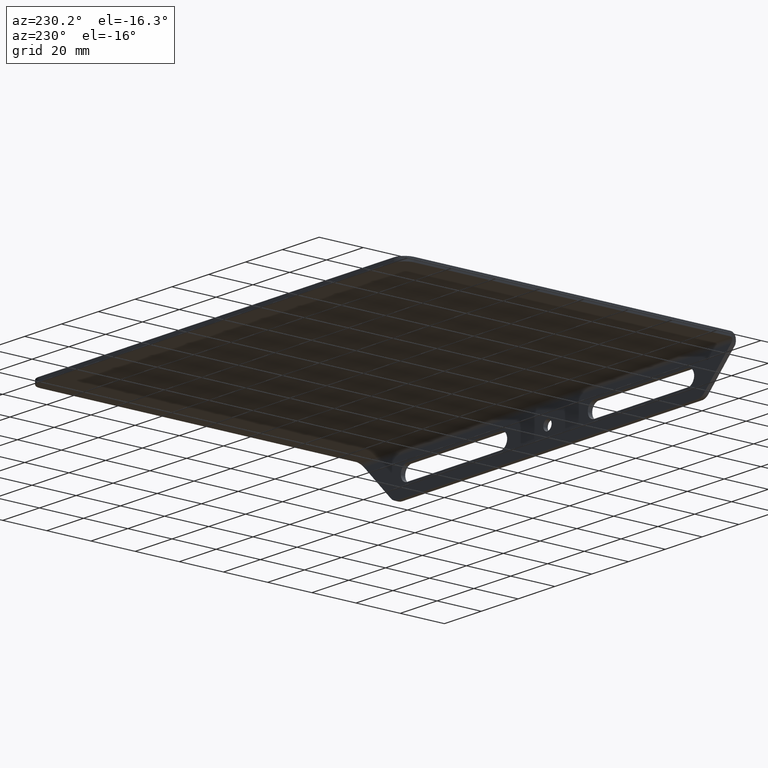
[diagram: clean part render]
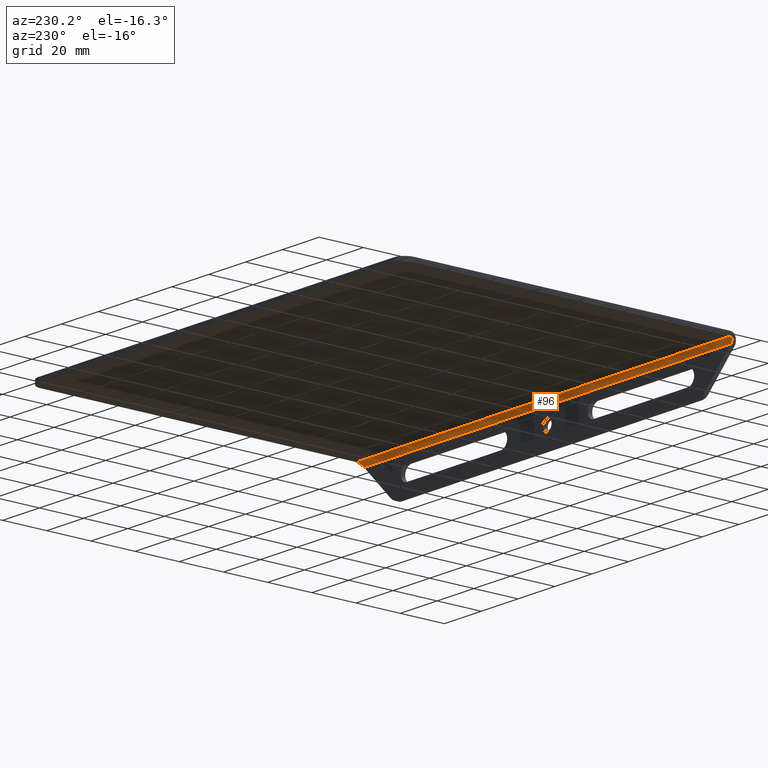
[diagram: same view with one face highlighted and labeled with its STEP entity id]
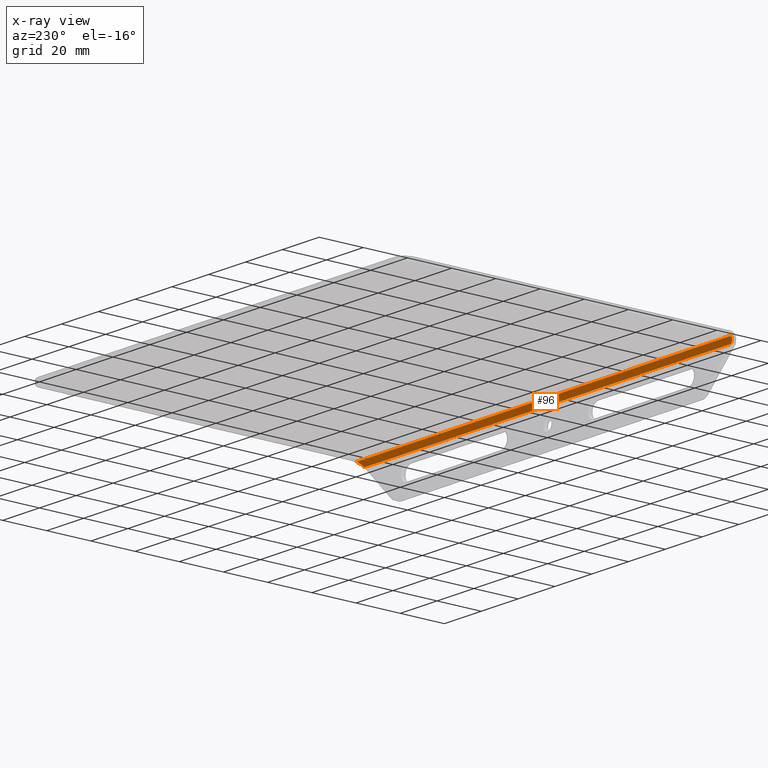
[diagram: x-ray of the same camera — body ghosted, the highlighted face saturated]
A machine part, auxiliary view. The second image highlights one B-rep face of the part: STEP entity #96.
The next image is the same camera in x-ray: the body ghosted, the highlighted face saturated — about 0% of this face is hidden behind the body in this view.
In plain terms, the highlighted cylindrical surface (edge-blend (fillet) strip) has radius 2 mm, axis along (-1, -0, -0).
Its self-contained STEP definition (entity closure, byte-faithful):
#27 = DIRECTION ( 'NONE',  ( -1.000000000000000000, -0.000000000000000000, -0.000000000000000000 ) ) ;
#37 = FACE_OUTER_BOUND ( 'NONE', #81, .T. ) ;
#80 = VERTEX_POINT ( 'NONE', #356 ) ;
#81 = EDGE_LOOP ( 'NONE', ( #843, #827, #316, #185, #612, #140 ) ) ;
#90 = AXIS2_PLACEMENT_3D ( 'NONE', #640, #407, #934 ) ;
#96 = ADVANCED_FACE ( 'NONE', ( #37 ), #349, .F. ) ;
#110 = CARTESIAN_POINT ( 'NONE',  ( 203.0999999999999943, 3.999999999999997335, -2.000000000000000000 ) ) ;
#117 = CIRCLE ( 'NONE', #534, 2.000000000000000000 ) ;
#140 = ORIENTED_EDGE ( 'NONE', *, *, #871, .F. ) ;
#174 =( BOUNDED_CURVE ( )  B_SPLINE_CURVE ( 3, ( #570, #469, #552, #773 ),
 .UNSPECIFIED., .F., .T. ) 
 B_SPLINE_CURVE_WITH_KNOTS ( ( 4, 4 ),
 ( 0.3175604292915076288, 1.570796326794896558 ),
 .UNSPECIFIED. ) 
 CURVE ( )  GEOMETRIC_REPRESENTATION_ITEM ( )  RATIONAL_B_SPLINE_CURVE ( ( 1.000000000000000000, 0.8733436007089550035, 0.8733436007089550035, 1.000000000000000000 ) ) 
 REPRESENTATION_ITEM ( '' )  );
#185 = ORIENTED_EDGE ( 'NONE', *, *, #961, .F. ) ;
#201 = EDGE_CURVE ( 'NONE', #80, #781, #272, .T. ) ;
#272 =( BOUNDED_CURVE ( )  B_SPLINE_CURVE ( 3, ( #998, #845, #442, #456 ),
 .UNSPECIFIED., .F., .T. ) 
 B_SPLINE_CURVE_WITH_KNOTS ( ( 4, 4 ),
 ( 1.570796326794896558, 2.824032224298361093 ),
 .UNSPECIFIED. ) 
 CURVE ( )  GEOMETRIC_REPRESENTATION_ITEM ( )  RATIONAL_B_SPLINE_CURVE ( ( 1.000000000000000000, 0.8733436007089402375, 0.8733436007089402375, 1.000000000000000000 ) ) 
 REPRESENTATION_ITEM ( '' )  );
#283 = CARTESIAN_POINT ( 'NONE',  ( 203.1000000000000227, 3.375500200160327591, -2.099999999999943689 ) ) ;
#290 = DIRECTION ( 'NONE',  ( -1.000000000000000000, -0.000000000000000000, -0.000000000000000000 ) ) ;
#316 = ORIENTED_EDGE ( 'NONE', *, *, #542, .T. ) ;
#349 = CYLINDRICAL_SURFACE ( 'NONE', #771, 2.000000000000000000 ) ;
#356 = CARTESIAN_POINT ( 'NONE',  ( 201.2000000000000171, 2.000000000000000000, -4.000000000000000000 ) ) ;
#361 = CARTESIAN_POINT ( 'NONE',  ( 203.1999999999999886, 2.000000000000000000, -4.000000000000000000 ) ) ;
#383 = EDGE_CURVE ( 'NONE', #697, #781, #587, .T. ) ;
#404 = EDGE_CURVE ( 'NONE', #705, #890, #117, .T. ) ;
#407 = DIRECTION ( 'NONE',  ( 1.000000000000000000, 0.000000000000000000, 0.000000000000000000 ) ) ;
#442 = CARTESIAN_POINT ( 'NONE',  ( 202.8204520991919537, 2.524993904286835456, -2.379547900808028693 ) ) ;
#446 = DIRECTION ( 'NONE',  ( -1.000000000000000000, -0.000000000000000000, -0.000000000000000000 ) ) ;
#456 = CARTESIAN_POINT ( 'NONE',  ( 203.1000000000000227, 3.375500200160327591, -2.099999999999943689 ) ) ;
#469 = CARTESIAN_POINT ( 'NONE',  ( 0.3795479008081156236, 2.524993904286771951, -2.379547900808121064 ) ) ;
#534 = AXIS2_PLACEMENT_3D ( 'NONE', #946, #855, #631 ) ;
#542 = EDGE_CURVE ( 'NONE', #80, #748, #906, .T. ) ;
#544 = CARTESIAN_POINT ( 'NONE',  ( 203.1999999999999886, 3.999999999999997335, -2.000000000000000000 ) ) ;
#552 = CARTESIAN_POINT ( 'NONE',  ( 1.104730214870080385, 2.000000000000000000, -3.104730214870094152 ) ) ;
#568 = VECTOR ( 'NONE', #446, 1000.000000000000000 ) ;
#570 = CARTESIAN_POINT ( 'NONE',  ( 0.09999999999998812616, 3.375500200160176600, -2.099999999999942801 ) ) ;
#583 = CARTESIAN_POINT ( 'NONE',  ( 0.09999999999998812616, 3.375500200160176600, -2.099999999999942801 ) ) ;
#586 = CARTESIAN_POINT ( 'NONE',  ( 203.1999999999999886, 3.999999999999999112, -4.000000000000000000 ) ) ;
#587 = CIRCLE ( 'NONE', #90, 2.000000000000000000 ) ;
#612 = ORIENTED_EDGE ( 'NONE', *, *, #404, .T. ) ;
#631 = DIRECTION ( 'NONE',  ( -1.219727444046192488E-16, 1.000000000000000000, 2.602085213965210642E-15 ) ) ;
#640 = CARTESIAN_POINT ( 'NONE',  ( 203.0999999999999943, 3.999999999999999112, -4.000000000000000000 ) ) ;
#697 = VERTEX_POINT ( 'NONE', #110 ) ;
#705 = VERTEX_POINT ( 'NONE', #583 ) ;
#736 = DIRECTION ( 'NONE',  ( 0.000000000000000000, 0.000000000000000000, 1.000000000000000000 ) ) ;
#748 = VERTEX_POINT ( 'NONE', #752 ) ;
#752 = CARTESIAN_POINT ( 'NONE',  ( 1.999999999999974021, 2.000000000000000000, -4.000000000000000000 ) ) ;
#771 = AXIS2_PLACEMENT_3D ( 'NONE', #586, #27, #736 ) ;
#773 = CARTESIAN_POINT ( 'NONE',  ( 1.999999999999974021, 2.000000000000000000, -4.000000000000000000 ) ) ;
#781 = VERTEX_POINT ( 'NONE', #283 ) ;
#827 = ORIENTED_EDGE ( 'NONE', *, *, #201, .F. ) ;
#831 = CARTESIAN_POINT ( 'NONE',  ( 0.09999999999998898659, 3.999999999999997335, -2.000000000000000000 ) ) ;
#843 = ORIENTED_EDGE ( 'NONE', *, *, #383, .T. ) ;
#845 = CARTESIAN_POINT ( 'NONE',  ( 202.0952697851300002, 1.999999999999999334, -3.104730214870031535 ) ) ;
#855 = DIRECTION ( 'NONE',  ( -1.000000000000000000, -1.225259087783363897E-16, -0.000000000000000000 ) ) ;
#871 = EDGE_CURVE ( 'NONE', #697, #890, #923, .T. ) ;
#877 = VECTOR ( 'NONE', #290, 1000.000000000000000 ) ;
#890 = VERTEX_POINT ( 'NONE', #831 ) ;
#906 = LINE ( 'NONE', #361, #568 ) ;
#923 = LINE ( 'NONE', #544, #877 ) ;
#934 = DIRECTION ( 'NONE',  ( 0.000000000000000000, -8.673617379884035472E-16, 1.000000000000000000 ) ) ;
#946 = CARTESIAN_POINT ( 'NONE',  ( 0.09999999999998898659, 3.999999999999999112, -4.000000000000000000 ) ) ;
#961 = EDGE_CURVE ( 'NONE', #705, #748, #174, .T. ) ;
#998 = CARTESIAN_POINT ( 'NONE',  ( 201.2000000000000171, 2.000000000000000000, -4.000000000000000000 ) ) ;